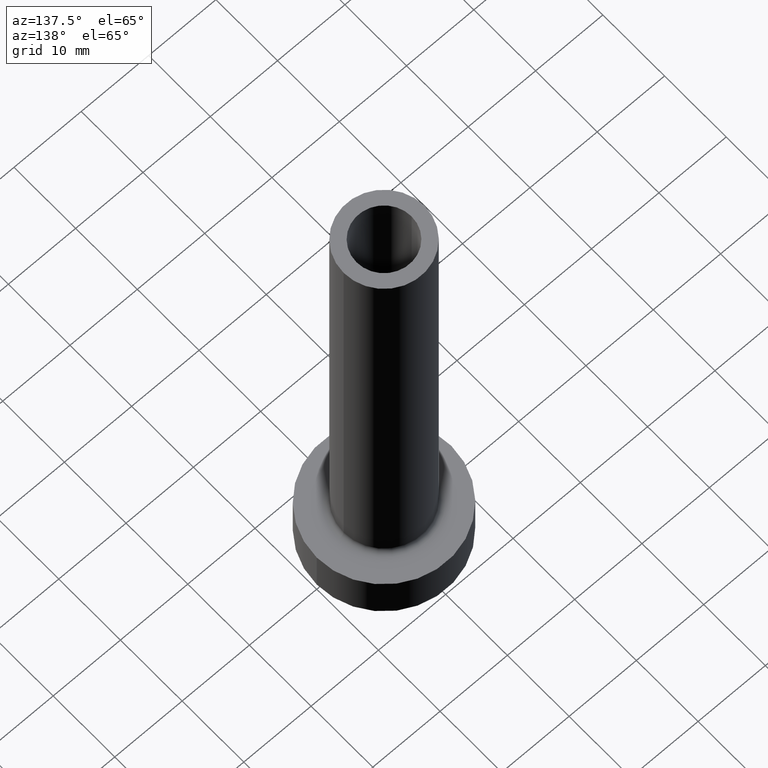
[diagram: clean part render]
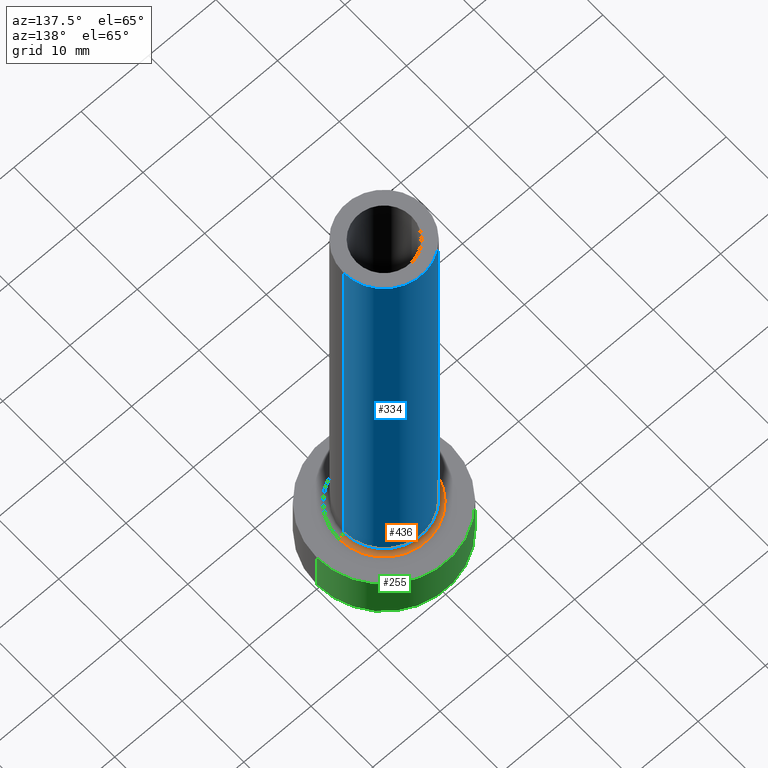
[diagram: same view with three faces highlighted in distinct colors, each labeled with its STEP entity id]
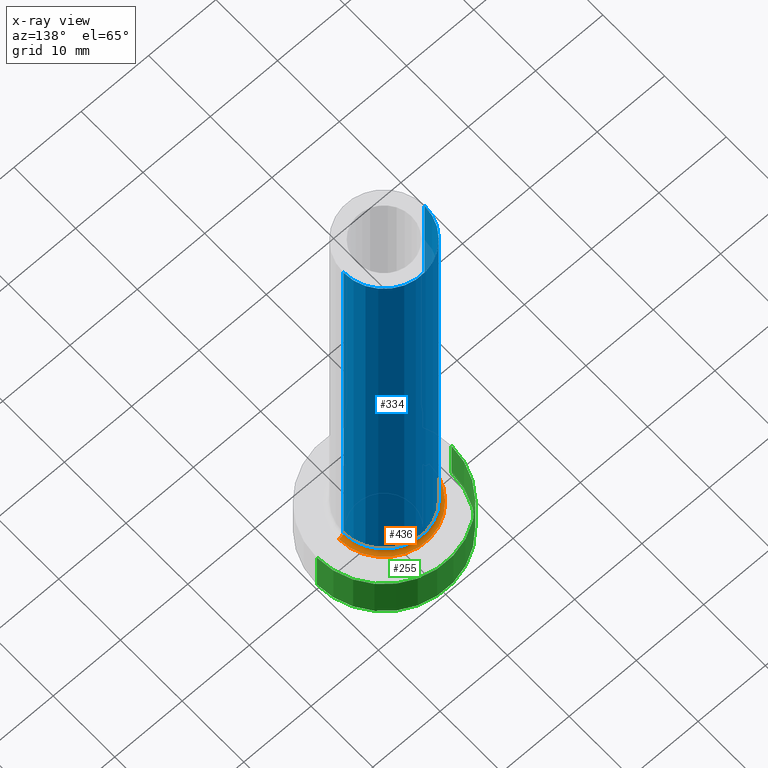
[diagram: x-ray of the same camera — body ghosted, the three highlighted faces saturated]
A machine part, auxiliary view with three faces highlighted in distinct colors.
The next image is the same camera in x-ray (body ghosted, the three faces saturated) — at least one of them is partly hidden behind the body in this view.
Their STEP definitions:

[orange] entity #436 — the highlighted toroidal blend (fillet) surface has major radius 6.7 mm and minor (blend) radius 0.7 mm.
#6 = ORIENTED_EDGE ( 'NONE', *, *, #51, .F. ) ;
#18 = CARTESIAN_POINT ( 'NONE',  ( 6.700000000000001066, 0.000000000000000000, 7.699999999999998401 ) ) ;
#51 = EDGE_CURVE ( 'NONE', #112, #72, #248, .T. ) ;
#54 = DIRECTION ( 'NONE',  ( 0.000000000000000000, 0.000000000000000000, 1.000000000000000000 ) ) ;
#64 = CARTESIAN_POINT ( 'NONE',  ( 6.700000000000001066, 0.000000000000000000, 6.999999999999999112 ) ) ;
#68 = CARTESIAN_POINT ( 'NONE',  ( -6.000000000000000888, 0.000000000000000000, 7.699999999999998401 ) ) ;
#70 = DIRECTION ( 'NONE',  ( -0.000000000000000000, -0.000000000000000000, -1.000000000000000000 ) ) ;
#72 = VERTEX_POINT ( 'NONE', #68 ) ;
#88 = CIRCLE ( 'NONE', #355, 0.7000000000000000666 ) ;
#91 = VERTEX_POINT ( 'NONE', #64 ) ;
#94 = CARTESIAN_POINT ( 'NONE',  ( 6.000000000000000888, 7.347880794884120722E-16, 7.699999999999998401 ) ) ;
#112 = VERTEX_POINT ( 'NONE', #94 ) ;
#116 = DIRECTION ( 'NONE',  ( -1.000000000000000000, 1.224646799147353454E-16, 0.000000000000000000 ) ) ;
#120 = AXIS2_PLACEMENT_3D ( 'NONE', #137, #70, #459 ) ;
#133 = AXIS2_PLACEMENT_3D ( 'NONE', #138, #275, #348 ) ;
#137 = CARTESIAN_POINT ( 'NONE',  ( 0.000000000000000000, 0.000000000000000000, 7.000000000000000000 ) ) ;
#138 = CARTESIAN_POINT ( 'NONE',  ( 0.000000000000000000, 0.000000000000000000, 7.699999999999998401 ) ) ;
#153 = VERTEX_POINT ( 'NONE', #193 ) ;
#163 = TOROIDAL_SURFACE ( 'NONE', #133, 6.700000000000001066, 0.6999999999999999556 ) ;
#170 = CIRCLE ( 'NONE', #433, 0.7000000000000000666 ) ;
#193 = CARTESIAN_POINT ( 'NONE',  ( -6.700000000000001066, 8.205133554287267548E-16, 6.999999999999999112 ) ) ;
#201 = ORIENTED_EDGE ( 'NONE', *, *, #365, .F. ) ;
#205 = DIRECTION ( 'NONE',  ( 1.224646799147353207E-16, 1.000000000000000000, -0.000000000000000000 ) ) ;
#212 = FACE_OUTER_BOUND ( 'NONE', #450, .T. ) ;
#234 = CARTESIAN_POINT ( 'NONE',  ( -6.700000000000001066, 8.205133554287267548E-16, 7.699999999999998401 ) ) ;
#242 = EDGE_CURVE ( 'NONE', #112, #91, #170, .T. ) ;
#248 = CIRCLE ( 'NONE', #256, 6.000000000000000888 ) ;
#251 = EDGE_CURVE ( 'NONE', #72, #153, #88, .T. ) ;
#256 = AXIS2_PLACEMENT_3D ( 'NONE', #454, #54, #304 ) ;
#275 = DIRECTION ( 'NONE',  ( 0.000000000000000000, 0.000000000000000000, 1.000000000000000000 ) ) ;
#304 = DIRECTION ( 'NONE',  ( 1.000000000000000000, 0.000000000000000000, 0.000000000000000000 ) ) ;
#314 = CIRCLE ( 'NONE', #120, 6.700000000000001066 ) ;
#348 = DIRECTION ( 'NONE',  ( 1.000000000000000000, 0.000000000000000000, 0.000000000000000000 ) ) ;
#355 = AXIS2_PLACEMENT_3D ( 'NONE', #234, #205, #116 ) ;
#365 = EDGE_CURVE ( 'NONE', #153, #91, #314, .T. ) ;
#407 = ORIENTED_EDGE ( 'NONE', *, *, #242, .T. ) ;
#415 = DIRECTION ( 'NONE',  ( 0.000000000000000000, 0.000000000000000000, -1.000000000000000000 ) ) ;
#419 = DIRECTION ( 'NONE',  ( 0.000000000000000000, -1.000000000000000000, 0.000000000000000000 ) ) ;
#433 = AXIS2_PLACEMENT_3D ( 'NONE', #18, #419, #415 ) ;
#436 = ADVANCED_FACE ( 'NONE', ( #212 ), #163, .F. ) ;
#438 = ORIENTED_EDGE ( 'NONE', *, *, #251, .F. ) ;
#450 = EDGE_LOOP ( 'NONE', ( #438, #6, #407, #201 ) ) ;
#454 = CARTESIAN_POINT ( 'NONE',  ( 0.000000000000000000, 0.000000000000000000, 7.699999999999998401 ) ) ;
#459 = DIRECTION ( 'NONE',  ( 1.000000000000000000, 0.000000000000000000, 0.000000000000000000 ) ) ;

[blue] entity #334 — the highlighted cylindrical surface (partial cylindrical patch) has radius 6 mm, axis along (-0, -0, -1).
#37 = DIRECTION ( 'NONE',  ( -0.000000000000000000, -0.000000000000000000, -1.000000000000000000 ) ) ;
#43 = EDGE_CURVE ( 'NONE', #414, #72, #155, .T. ) ;
#47 = DIRECTION ( 'NONE',  ( -0.000000000000000000, -0.000000000000000000, -1.000000000000000000 ) ) ;
#51 = EDGE_CURVE ( 'NONE', #112, #72, #248, .T. ) ;
#54 = DIRECTION ( 'NONE',  ( 0.000000000000000000, 0.000000000000000000, 1.000000000000000000 ) ) ;
#68 = CARTESIAN_POINT ( 'NONE',  ( -6.000000000000000888, 0.000000000000000000, 7.699999999999998401 ) ) ;
#72 = VERTEX_POINT ( 'NONE', #68 ) ;
#94 = CARTESIAN_POINT ( 'NONE',  ( 6.000000000000000888, 7.347880794884120722E-16, 7.699999999999998401 ) ) ;
#96 = AXIS2_PLACEMENT_3D ( 'NONE', #351, #101, #245 ) ;
#101 = DIRECTION ( 'NONE',  ( 0.000000000000000000, 0.000000000000000000, 1.000000000000000000 ) ) ;
#111 = CIRCLE ( 'NONE', #96, 6.000000000000000888 ) ;
#112 = VERTEX_POINT ( 'NONE', #94 ) ;
#113 = EDGE_CURVE ( 'NONE', #169, #112, #244, .T. ) ;
#155 = LINE ( 'NONE', #367, #197 ) ;
#169 = VERTEX_POINT ( 'NONE', #366 ) ;
#185 = VECTOR ( 'NONE', #37, 1000.000000000000000 ) ;
#186 = AXIS2_PLACEMENT_3D ( 'NONE', #306, #455, #310 ) ;
#197 = VECTOR ( 'NONE', #47, 1000.000000000000000 ) ;
#202 = FACE_OUTER_BOUND ( 'NONE', #331, .T. ) ;
#209 = CARTESIAN_POINT ( 'NONE',  ( 6.000000000000000888, 7.347880794884120722E-16, 75.00000000000001421 ) ) ;
#244 = LINE ( 'NONE', #209, #185 ) ;
#245 = DIRECTION ( 'NONE',  ( 1.000000000000000000, 0.000000000000000000, 0.000000000000000000 ) ) ;
#248 = CIRCLE ( 'NONE', #256, 6.000000000000000888 ) ;
#250 = CARTESIAN_POINT ( 'NONE',  ( -6.000000000000000888, 0.000000000000000000, 75.00000000000001421 ) ) ;
#256 = AXIS2_PLACEMENT_3D ( 'NONE', #454, #54, #304 ) ;
#304 = DIRECTION ( 'NONE',  ( 1.000000000000000000, 0.000000000000000000, 0.000000000000000000 ) ) ;
#306 = CARTESIAN_POINT ( 'NONE',  ( 0.000000000000000000, 0.000000000000000000, 75.00000000000001421 ) ) ;
#310 = DIRECTION ( 'NONE',  ( -1.000000000000000000, 0.000000000000000000, 0.000000000000000000 ) ) ;
#313 = ORIENTED_EDGE ( 'NONE', *, *, #374, .F. ) ;
#319 = ORIENTED_EDGE ( 'NONE', *, *, #113, .T. ) ;
#331 = EDGE_LOOP ( 'NONE', ( #313, #319, #376, #453 ) ) ;
#334 = ADVANCED_FACE ( 'NONE', ( #202 ), #342, .T. ) ;
#342 = CYLINDRICAL_SURFACE ( 'NONE', #186, 6.000000000000000888 ) ;
#351 = CARTESIAN_POINT ( 'NONE',  ( 0.000000000000000000, 0.000000000000000000, 75.00000000000001421 ) ) ;
#366 = CARTESIAN_POINT ( 'NONE',  ( 6.000000000000000888, 7.347880794884120722E-16, 75.00000000000001421 ) ) ;
#367 = CARTESIAN_POINT ( 'NONE',  ( -6.000000000000000888, 0.000000000000000000, 75.00000000000001421 ) ) ;
#374 = EDGE_CURVE ( 'NONE', #169, #414, #111, .T. ) ;
#376 = ORIENTED_EDGE ( 'NONE', *, *, #51, .T. ) ;
#414 = VERTEX_POINT ( 'NONE', #250 ) ;
#453 = ORIENTED_EDGE ( 'NONE', *, *, #43, .F. ) ;
#454 = CARTESIAN_POINT ( 'NONE',  ( 0.000000000000000000, 0.000000000000000000, 7.699999999999998401 ) ) ;
#455 = DIRECTION ( 'NONE',  ( -0.000000000000000000, -0.000000000000000000, -1.000000000000000000 ) ) ;

[green] entity #255 — the highlighted cylindrical surface (partial cylindrical patch) has radius 10 mm, axis along (-0, -0, -1).
#23 = ORIENTED_EDGE ( 'NONE', *, *, #56, .F. ) ;
#26 = AXIS2_PLACEMENT_3D ( 'NONE', #183, #394, #274 ) ;
#28 = AXIS2_PLACEMENT_3D ( 'NONE', #294, #167, #300 ) ;
#36 = LINE ( 'NONE', #308, #379 ) ;
#56 = EDGE_CURVE ( 'NONE', #204, #118, #233, .T. ) ;
#71 = CARTESIAN_POINT ( 'NONE',  ( -10.00000000000000000, 0.000000000000000000, 0.000000000000000000 ) ) ;
#74 = EDGE_CURVE ( 'NONE', #199, #204, #221, .T. ) ;
#81 = CARTESIAN_POINT ( 'NONE',  ( 10.00000000000000000, 1.224646799147353256E-15, 0.000000000000000000 ) ) ;
#104 = ORIENTED_EDGE ( 'NONE', *, *, #456, .T. ) ;
#118 = VERTEX_POINT ( 'NONE', #71 ) ;
#132 = CARTESIAN_POINT ( 'NONE',  ( -10.00000000000000000, 0.000000000000000000, 7.000000000000000000 ) ) ;
#156 = VERTEX_POINT ( 'NONE', #81 ) ;
#167 = DIRECTION ( 'NONE',  ( -0.000000000000000000, -0.000000000000000000, -1.000000000000000000 ) ) ;
#177 = DIRECTION ( 'NONE',  ( -0.000000000000000000, -0.000000000000000000, -1.000000000000000000 ) ) ;
#183 = CARTESIAN_POINT ( 'NONE',  ( 0.000000000000000000, 0.000000000000000000, 7.000000000000000000 ) ) ;
#199 = VERTEX_POINT ( 'NONE', #325 ) ;
#204 = VERTEX_POINT ( 'NONE', #132 ) ;
#221 = CIRCLE ( 'NONE', #26, 10.00000000000000000 ) ;
#233 = LINE ( 'NONE', #340, #305 ) ;
#241 = DIRECTION ( 'NONE',  ( 0.000000000000000000, 0.000000000000000000, 1.000000000000000000 ) ) ;
#243 = CIRCLE ( 'NONE', #285, 10.00000000000000000 ) ;
#246 = CARTESIAN_POINT ( 'NONE',  ( 0.000000000000000000, 0.000000000000000000, 0.000000000000000000 ) ) ;
#254 = ORIENTED_EDGE ( 'NONE', *, *, #361, .T. ) ;
#255 = ADVANCED_FACE ( 'NONE', ( #332 ), #410, .T. ) ;
#274 = DIRECTION ( 'NONE',  ( 1.000000000000000000, 0.000000000000000000, 0.000000000000000000 ) ) ;
#285 = AXIS2_PLACEMENT_3D ( 'NONE', #246, #241, #393 ) ;
#294 = CARTESIAN_POINT ( 'NONE',  ( 0.000000000000000000, 0.000000000000000000, 7.000000000000000000 ) ) ;
#300 = DIRECTION ( 'NONE',  ( -1.000000000000000000, 0.000000000000000000, 0.000000000000000000 ) ) ;
#305 = VECTOR ( 'NONE', #390, 1000.000000000000000 ) ;
#308 = CARTESIAN_POINT ( 'NONE',  ( 10.00000000000000000, 1.224646799147353256E-15, 7.000000000000000000 ) ) ;
#325 = CARTESIAN_POINT ( 'NONE',  ( 10.00000000000000000, 1.224646799147353256E-15, 7.000000000000000000 ) ) ;
#332 = FACE_OUTER_BOUND ( 'NONE', #411, .T. ) ;
#340 = CARTESIAN_POINT ( 'NONE',  ( -10.00000000000000000, 0.000000000000000000, 7.000000000000000000 ) ) ;
#361 = EDGE_CURVE ( 'NONE', #156, #118, #243, .T. ) ;
#373 = ORIENTED_EDGE ( 'NONE', *, *, #74, .F. ) ;
#379 = VECTOR ( 'NONE', #177, 1000.000000000000000 ) ;
#390 = DIRECTION ( 'NONE',  ( -0.000000000000000000, -0.000000000000000000, -1.000000000000000000 ) ) ;
#393 = DIRECTION ( 'NONE',  ( 1.000000000000000000, 0.000000000000000000, 0.000000000000000000 ) ) ;
#394 = DIRECTION ( 'NONE',  ( 0.000000000000000000, 0.000000000000000000, 1.000000000000000000 ) ) ;
#410 = CYLINDRICAL_SURFACE ( 'NONE', #28, 10.00000000000000000 ) ;
#411 = EDGE_LOOP ( 'NONE', ( #373, #104, #254, #23 ) ) ;
#456 = EDGE_CURVE ( 'NONE', #199, #156, #36, .T. ) ;